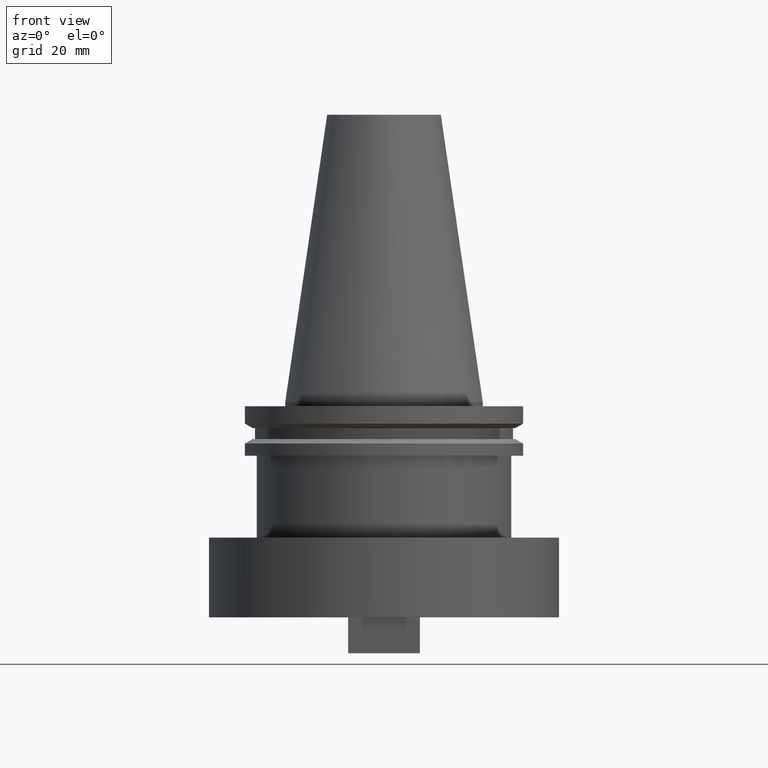
[diagram: clean part render]
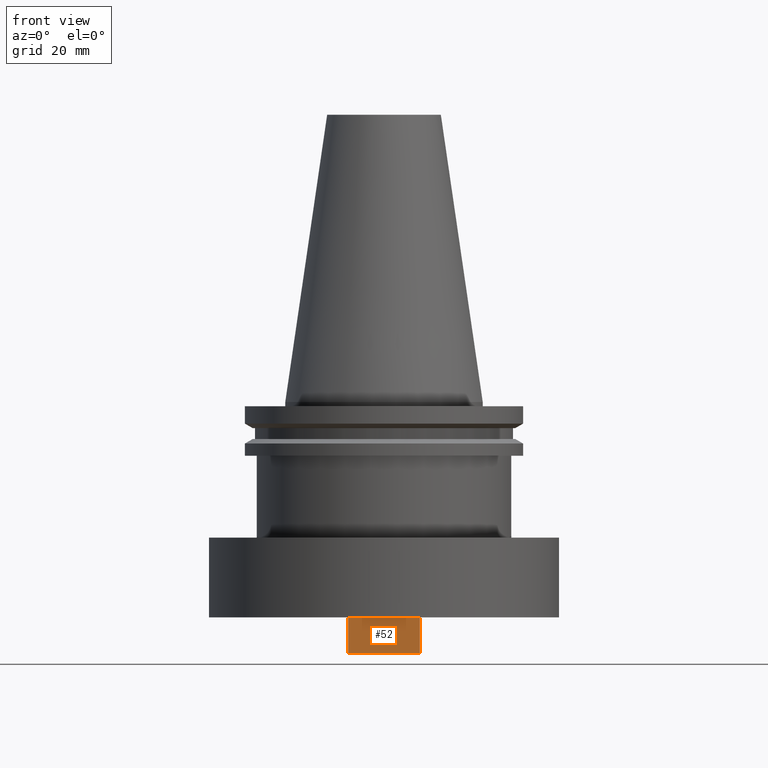
[diagram: same view with one face highlighted and labeled with its STEP entity id]
A machine part, front view. The second image highlights one B-rep face of the part: STEP entity #52.
In plain terms, the highlighted planar face has unit normal (0, 1, 0).
Its self-contained STEP definition (entity closure, byte-faithful):
#31 = CARTESIAN_POINT ( 'NONE',  ( -12.69999999999999396, -57.59000000000000341, -88.90000000000001990 ) ) ;
#52 = ADVANCED_FACE ( 'NONE', ( #85 ), #512, .F. ) ;
#74 = VECTOR ( 'NONE', #1014, 1000.000000000000000 ) ;
#85 = FACE_OUTER_BOUND ( 'NONE', #579, .T. ) ;
#106 = ORIENTED_EDGE ( 'NONE', *, *, #931, .F. ) ;
#143 = VERTEX_POINT ( 'NONE', #591 ) ;
#155 = ORIENTED_EDGE ( 'NONE', *, *, #745, .T. ) ;
#163 = VECTOR ( 'NONE', #490, 1000.000000000000000 ) ;
#194 = LINE ( 'NONE', #618, #74 ) ;
#259 = AXIS2_PLACEMENT_3D ( 'NONE', #999, #261, #923 ) ;
#261 = DIRECTION ( 'NONE',  ( 0.000000000000000000, 1.000000000000000000, 0.000000000000000000 ) ) ;
#265 = EDGE_CURVE ( 'NONE', #915, #143, #194, .T. ) ;
#278 = EDGE_CURVE ( 'NONE', #288, #143, #948, .T. ) ;
#288 = VERTEX_POINT ( 'NONE', #31 ) ;
#344 = ORIENTED_EDGE ( 'NONE', *, *, #265, .T. ) ;
#355 = ORIENTED_EDGE ( 'NONE', *, *, #278, .F. ) ;
#407 = LINE ( 'NONE', #1045, #163 ) ;
#463 = CARTESIAN_POINT ( 'NONE',  ( -12.69999999999999396, -57.59000000000000341, -88.90000000000001990 ) ) ;
#477 = VECTOR ( 'NONE', #876, 1000.000000000000000 ) ;
#486 = VERTEX_POINT ( 'NONE', #1035 ) ;
#490 = DIRECTION ( 'NONE',  ( -1.000000000000000000, 0.000000000000000000, 0.000000000000000000 ) ) ;
#512 = PLANE ( 'NONE',  #259 ) ;
#579 = EDGE_LOOP ( 'NONE', ( #344, #355, #106, #155 ) ) ;
#591 = CARTESIAN_POINT ( 'NONE',  ( -12.69999999999999396, -57.59000000000000341, -76.20000000000001705 ) ) ;
#605 = CARTESIAN_POINT ( 'NONE',  ( 12.70000000000000462, -57.59000000000000341, -88.90000000000001990 ) ) ;
#618 = CARTESIAN_POINT ( 'NONE',  ( 12.70000000000000462, -57.59000000000000341, -76.20000000000001705 ) ) ;
#623 = LINE ( 'NONE', #605, #1084 ) ;
#636 = CARTESIAN_POINT ( 'NONE',  ( 12.70000000000000462, -57.59000000000000341, -76.20000000000001705 ) ) ;
#745 = EDGE_CURVE ( 'NONE', #486, #915, #623, .T. ) ;
#876 = DIRECTION ( 'NONE',  ( -0.000000000000000000, -0.000000000000000000, 1.000000000000000000 ) ) ;
#915 = VERTEX_POINT ( 'NONE', #636 ) ;
#923 = DIRECTION ( 'NONE',  ( 0.000000000000000000, -0.000000000000000000, 1.000000000000000000 ) ) ;
#930 = DIRECTION ( 'NONE',  ( -0.000000000000000000, -0.000000000000000000, 1.000000000000000000 ) ) ;
#931 = EDGE_CURVE ( 'NONE', #486, #288, #407, .T. ) ;
#948 = LINE ( 'NONE', #463, #477 ) ;
#999 = CARTESIAN_POINT ( 'NONE',  ( 12.70000000000000462, -57.59000000000000341, -88.90000000000001990 ) ) ;
#1014 = DIRECTION ( 'NONE',  ( -1.000000000000000000, 0.000000000000000000, 0.000000000000000000 ) ) ;
#1035 = CARTESIAN_POINT ( 'NONE',  ( 12.70000000000000462, -57.59000000000000341, -88.90000000000001990 ) ) ;
#1045 = CARTESIAN_POINT ( 'NONE',  ( 12.70000000000000462, -57.59000000000000341, -88.90000000000001990 ) ) ;
#1084 = VECTOR ( 'NONE', #930, 1000.000000000000000 ) ;